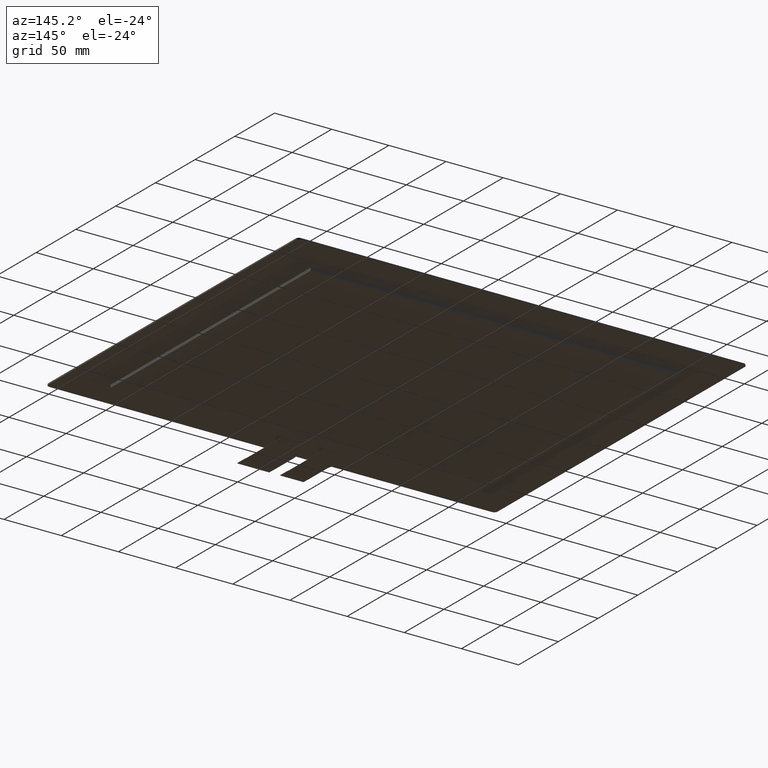
[diagram: clean part render]
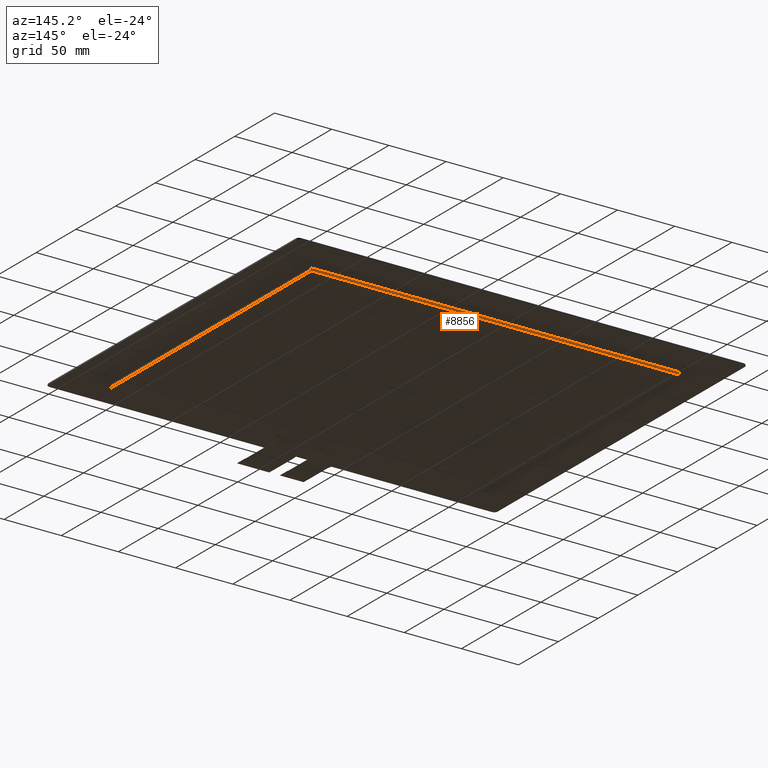
[diagram: same view with one face highlighted and labeled with its STEP entity id]
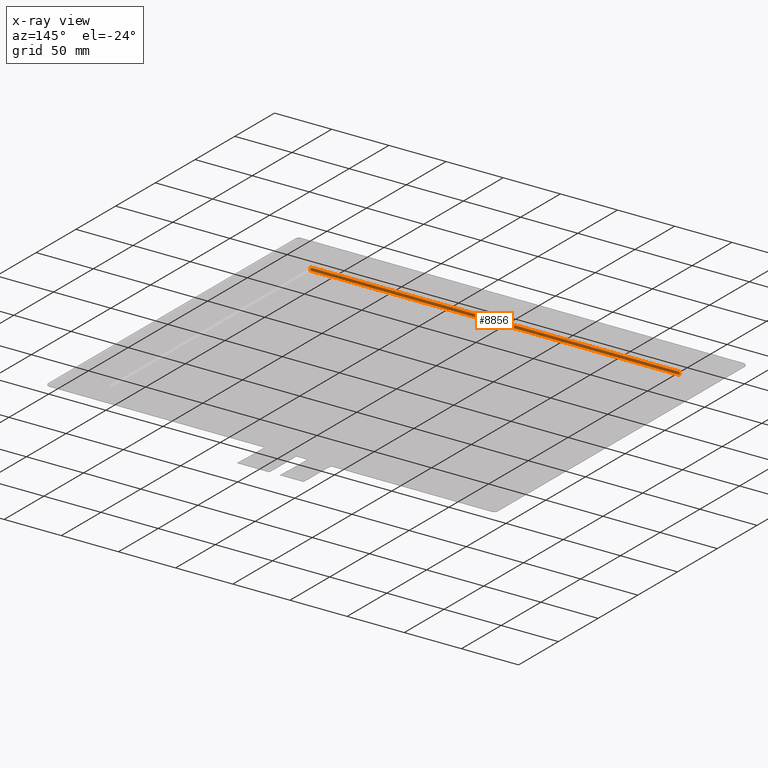
[diagram: x-ray of the same camera — body ghosted, the highlighted face saturated]
A machine part, auxiliary view. The second image highlights one B-rep face of the part: STEP entity #8856.
The next image is the same camera in x-ray: the body ghosted, the highlighted face saturated — about 0% of this face is hidden behind the body in this view.
In plain terms, the highlighted planar face has unit normal (0, 1, 0).
Its self-contained STEP definition (entity closure, byte-faithful):
#489=FACE_OUTER_BOUND('',#918,.T.);
#918=EDGE_LOOP('',(#8005,#8006,#8007,#8008));
#955=LINE('',#11522,#2200);
#2157=LINE('',#13936,#3402);
#2163=LINE('',#13947,#3408);
#2164=LINE('',#13949,#3409);
#2200=VECTOR('',#9396,10.);
#3402=VECTOR('',#11416,10.);
#3408=VECTOR('',#11426,10.);
#3409=VECTOR('',#11429,10.);
#3438=VERTEX_POINT('',#11515);
#3441=VERTEX_POINT('',#11520);
#4244=VERTEX_POINT('',#13935);
#4247=VERTEX_POINT('',#13945);
#4291=EDGE_CURVE('',#3441,#3438,#955,.T.);
#5495=EDGE_CURVE('',#3438,#4244,#2157,.T.);
#5501=EDGE_CURVE('',#3441,#4247,#2163,.T.);
#5502=EDGE_CURVE('',#4244,#4247,#2164,.T.);
#8005=ORIENTED_EDGE('',*,*,#4291,.F.);
#8006=ORIENTED_EDGE('',*,*,#5501,.T.);
#8007=ORIENTED_EDGE('',*,*,#5502,.F.);
#8008=ORIENTED_EDGE('',*,*,#5495,.F.);
#8431=PLANE('',#9313);
#8856=ADVANCED_FACE('',(#489),#8431,.T.);
#9313=AXIS2_PLACEMENT_3D('',#13948,#11427,#11428);
#9396=DIRECTION('',(-1.,0.,0.));
#11416=DIRECTION('',(0.,0.,-1.));
#11426=DIRECTION('',(0.,0.,-1.));
#11427=DIRECTION('center_axis',(0.,1.,0.));
#11428=DIRECTION('ref_axis',(1.,0.,0.));
#11429=DIRECTION('',(1.,0.,0.));
#11515=CARTESIAN_POINT('',(-163.2,121.65,0.));
#11520=CARTESIAN_POINT('',(159.7,121.65,0.));
#11522=CARTESIAN_POINT('',(159.7,121.65,0.));
#13935=CARTESIAN_POINT('',(-163.2,121.65,-2.5));
#13936=CARTESIAN_POINT('',(-163.2,121.65,0.));
#13945=CARTESIAN_POINT('',(159.7,121.65,-2.5));
#13947=CARTESIAN_POINT('',(159.7,121.65,0.));
#13948=CARTESIAN_POINT('Origin',(-163.2,121.65,0.));
#13949=CARTESIAN_POINT('',(159.7,121.65,-2.5));